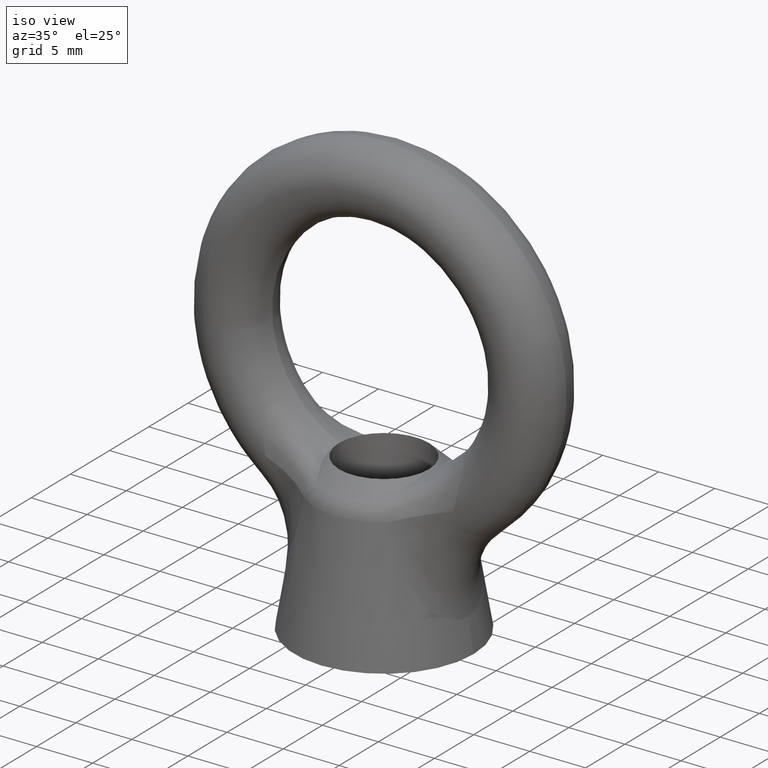
[diagram: clean part render]
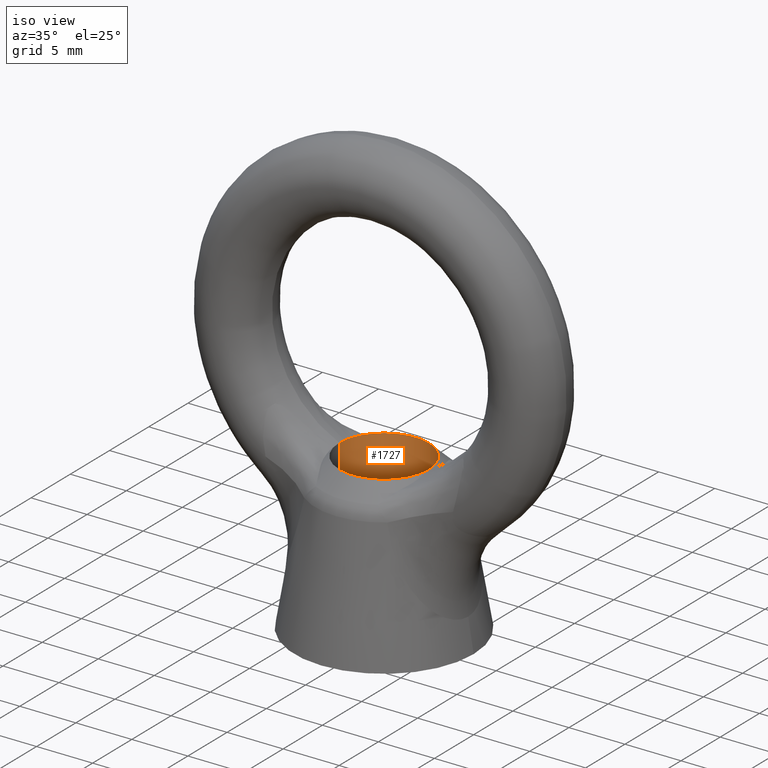
[diagram: same view with one face highlighted and labeled with its STEP entity id]
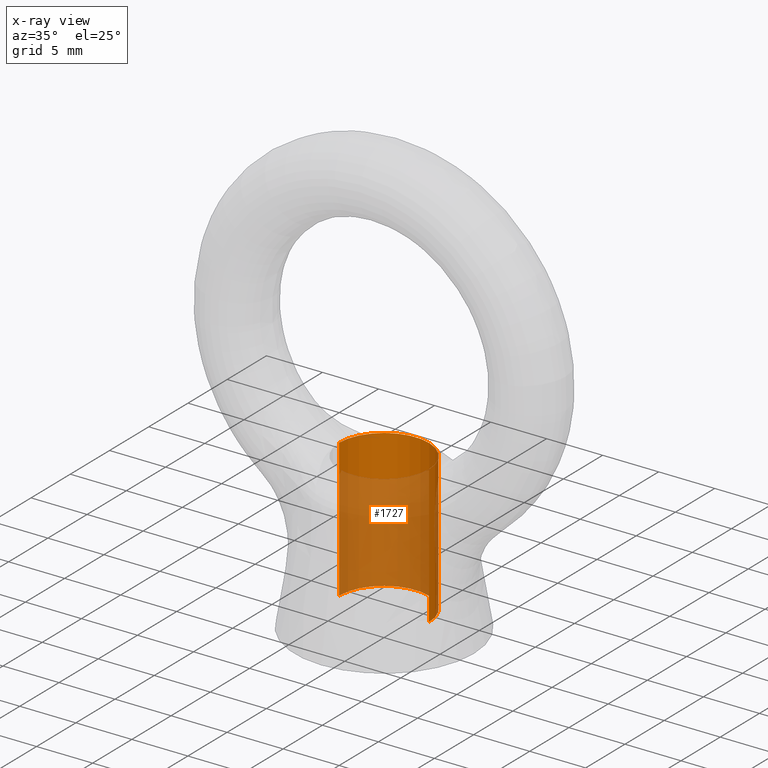
[diagram: x-ray of the same camera — body ghosted, the highlighted face saturated]
A machine part, iso view. The second image highlights one B-rep face of the part: STEP entity #1727.
The next image is the same camera in x-ray: the body ghosted, the highlighted face saturated — about 68% of this face is hidden behind the body in this view.
In plain terms, the highlighted cylindrical surface (partial cylindrical patch) has radius 4 mm, axis along (0, 0, -1).
Its self-contained STEP definition (entity closure, byte-faithful):
#86 = DIRECTION ( 'NONE',  ( 0.0000000000000000000, 0.0000000000000000000, -1.000000000000000000 ) ) ;
#87 = VECTOR ( 'NONE', #86, 1000.000000000000000 ) ;
#88 = CARTESIAN_POINT ( 'NONE',  ( -4.000000000000000000, 0.0000000000000000000, 977.0000000000000000 ) ) ;
#89 = LINE ( 'NONE', #88, #87 ) ;
#90 = DIRECTION ( 'NONE',  ( 0.0000000000000000000, 0.0000000000000000000, -1.000000000000000000 ) ) ;
#91 = VECTOR ( 'NONE', #90, 1000.000000000000000 ) ;
#92 = CARTESIAN_POINT ( 'NONE',  ( 4.000000000000000000, 4.898425415289509000E-016, 977.0000000000000000 ) ) ;
#93 = LINE ( 'NONE', #92, #91 ) ;
#1689 = EDGE_CURVE ( 'NONE', #1899, #1803, #93, .T. ) ;
#1692 = EDGE_CURVE ( 'NONE', #1897, #1804, #89, .T. ) ;
#1712 = EDGE_CURVE ( 'NONE', #1869, #1899, #2602, .T. ) ;
#1727 = ADVANCED_FACE ( 'NONE', ( #3733 ), #3751, .F. ) ;
#1728 = EDGE_LOOP ( 'NONE', ( #1729, #1730, #1731, #1732, #1733, #1916 ) ) ;
#1729 = ORIENTED_EDGE ( 'NONE', *, *, #1689, .F. ) ;
#1730 = ORIENTED_EDGE ( 'NONE', *, *, #1712, .F. ) ;
#1731 = ORIENTED_EDGE ( 'NONE', *, *, #1883, .F. ) ;
#1732 = ORIENTED_EDGE ( 'NONE', *, *, #1752, .F. ) ;
#1733 = ORIENTED_EDGE ( 'NONE', *, *, #1692, .T. ) ;
#1752 = EDGE_CURVE ( 'NONE', #1897, #1881, #3652, .T. ) ;
#1803 = VERTEX_POINT ( 'NONE', #5852 ) ;
#1804 = VERTEX_POINT ( 'NONE', #5851 ) ;
#1869 = VERTEX_POINT ( 'NONE', #5747 ) ;
#1881 = VERTEX_POINT ( 'NONE', #6033 ) ;
#1883 = EDGE_CURVE ( 'NONE', #1881, #1869, #6076, .T. ) ;
#1897 = VERTEX_POINT ( 'NONE', #8610 ) ;
#1899 = VERTEX_POINT ( 'NONE', #8612 ) ;
#1916 = ORIENTED_EDGE ( 'NONE', *, *, #1917, .T. ) ;
#1917 = EDGE_CURVE ( 'NONE', #1804, #1803, #8552, .T. ) ;
#2569 = CARTESIAN_POINT ( 'NONE',  ( 3.999981490171810700, 3.260163731452812900E-011, -9.165160999999910600 ) ) ;
#2570 = CARTESIAN_POINT ( 'NONE',  ( 3.999962982816434500, 0.002808003560106539600, -9.165160998920665500 ) ) ;
#2571 = CARTESIAN_POINT ( 'NONE',  ( 3.999972367223962400, 0.005615579782664868600, -9.165161000000098900 ) ) ;
#2572 = CARTESIAN_POINT ( 'NONE',  ( 3.999991132216449900, 0.008422718668389868700, -9.165160999999999400 ) ) ;
#2602 = B_SPLINE_CURVE_WITH_KNOTS ( 'NONE', 3,
 ( #2572, #2571, #2570, #2569 ),
 .UNSPECIFIED., .F., .F.,
 ( 4, 4 ),
 ( 0.0000000000000000000, 0.4999999980646996400 ),
 .UNSPECIFIED. ) ;
#3627 = DIRECTION ( 'NONE',  ( -1.000000000000000000, 0.0000000000000000000, 0.0000000000000000000 ) ) ;
#3652 = B_SPLINE_CURVE_WITH_KNOTS ( 'NONE', 3,
 ( #3747, #3746, #3745, #3744 ),
 .UNSPECIFIED., .F., .F.,
 ( 4, 4 ),
 ( 0.4999999988099788100, 1.000000000000000000 ),
 .UNSPECIFIED. ) ;
#3732 = CARTESIAN_POINT ( 'NONE',  ( 0.0000000000000000000, 0.0000000000000000000, 977.0000000000000000 ) ) ;
#3733 = FACE_OUTER_BOUND ( 'NONE', #1728, .T. ) ;
#3744 = CARTESIAN_POINT ( 'NONE',  ( -3.999991132216399700, 0.008422718692571259900, -9.165160999999999400 ) ) ;
#3745 = CARTESIAN_POINT ( 'NONE',  ( -3.999972362470842300, 0.005614868498657867900, -9.165160999999363500 ) ) ;
#3746 = CARTESIAN_POINT ( 'NONE',  ( -3.999962978823111900, 0.002807833838299377400, -9.165161000663422500 ) ) ;
#3747 = CARTESIAN_POINT ( 'NONE',  ( -3.999981490171640600, -2.004224665597868900E-011, -9.165160999999983500 ) ) ;
#3751 = CYLINDRICAL_SURFACE ( 'NONE', #3753, 4.000000000000000000 ) ;
#3752 = DIRECTION ( 'NONE',  ( 0.0000000000000000000, 0.0000000000000000000, -1.000000000000000000 ) ) ;
#3753 = AXIS2_PLACEMENT_3D ( 'NONE', #3732, #3752, #3627 ) ;
#5747 = CARTESIAN_POINT ( 'NONE',  ( 3.999991132216449900, 0.008422718668389868700, -9.165160999999999400 ) ) ;
#5851 = CARTESIAN_POINT ( 'NONE',  ( -4.000000000000000000, 0.0000000000000000000, -21.50000000000000000 ) ) ;
#5852 = CARTESIAN_POINT ( 'NONE',  ( 4.000000000000000000, 4.898425415289509000E-016, -21.50000000000000000 ) ) ;
#6033 = CARTESIAN_POINT ( 'NONE',  ( -3.999991132216399700, 0.008422718692571259900, -9.165160999999999400 ) ) ;
#6073 = DIRECTION ( 'NONE',  ( -1.000000000000000000, 0.0000000000000000000, 0.0000000000000000000 ) ) ;
#6074 = DIRECTION ( 'NONE',  ( 0.0000000000000000000, 0.0000000000000000000, -1.000000000000000000 ) ) ;
#6075 = AXIS2_PLACEMENT_3D ( 'NONE', #6082, #6074, #6073 ) ;
#6076 = CIRCLE ( 'NONE', #6075, 4.000000000000000000 ) ;
#6082 = CARTESIAN_POINT ( 'NONE',  ( 0.0000000000000000000, 0.0000000000000000000, -9.165161000000100700 ) ) ;
#8548 = DIRECTION ( 'NONE',  ( -1.000000000000000000, 0.0000000000000000000, 0.0000000000000000000 ) ) ;
#8549 = DIRECTION ( 'NONE',  ( 0.0000000000000000000, 0.0000000000000000000, -1.000000000000000000 ) ) ;
#8550 = CARTESIAN_POINT ( 'NONE',  ( 0.0000000000000000000, 0.0000000000000000000, -21.50000000000000000 ) ) ;
#8551 = AXIS2_PLACEMENT_3D ( 'NONE', #8550, #8549, #8548 ) ;
#8552 = CIRCLE ( 'NONE', #8551, 4.000000000000000000 ) ;
#8610 = CARTESIAN_POINT ( 'NONE',  ( -3.999981490171640600, -2.004224665597868900E-011, -9.165160999999983500 ) ) ;
#8612 = CARTESIAN_POINT ( 'NONE',  ( 3.999981490171810700, 3.260163731452812900E-011, -9.165160999999910600 ) ) ;